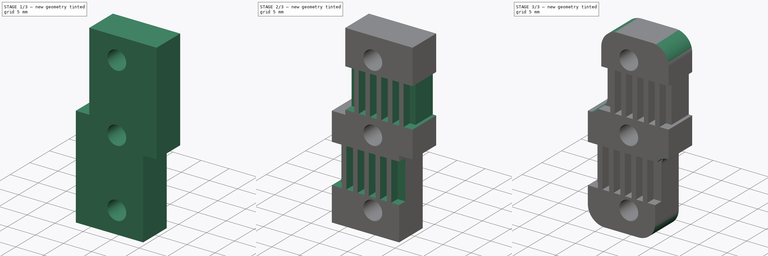
[diagram: build sequence overview — one tinted view per stage of 3, left to right]
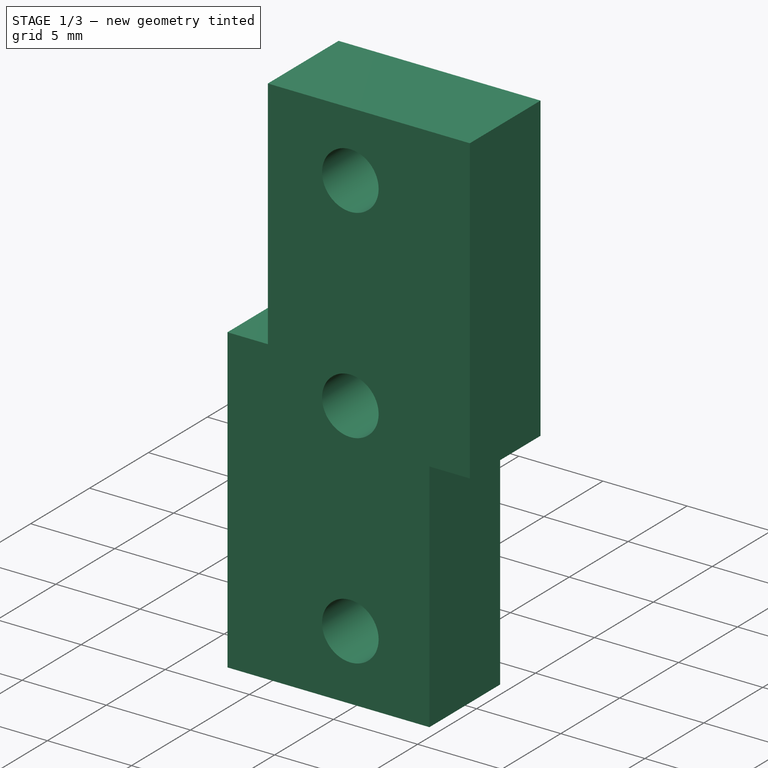
[diagram: stage 1 of 3 — iso view after this stage's code; geometry added in this stage tinted green]
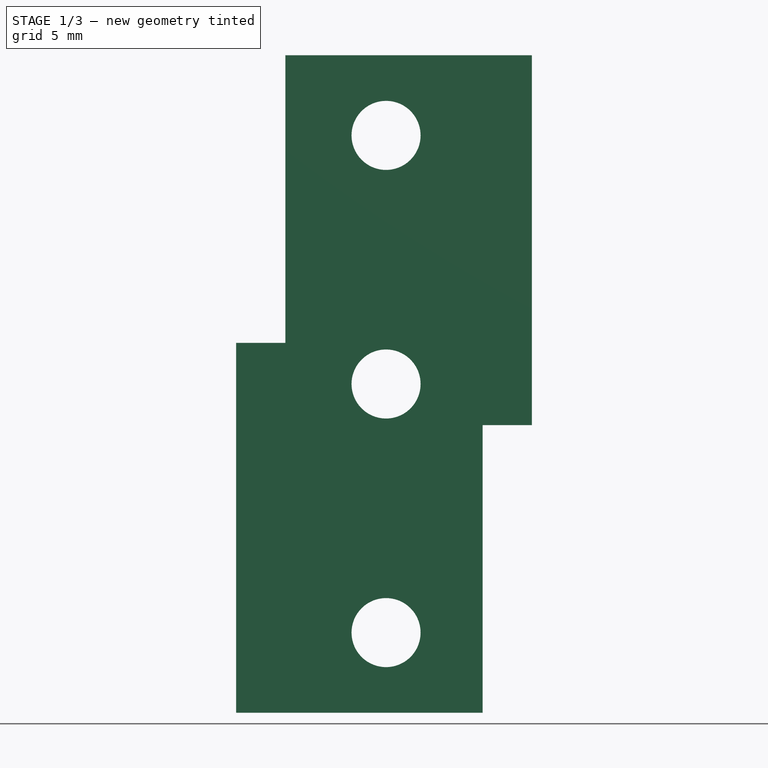
[diagram: stage 1 of 3 — front view after this stage's code; geometry added in this stage tinted green]
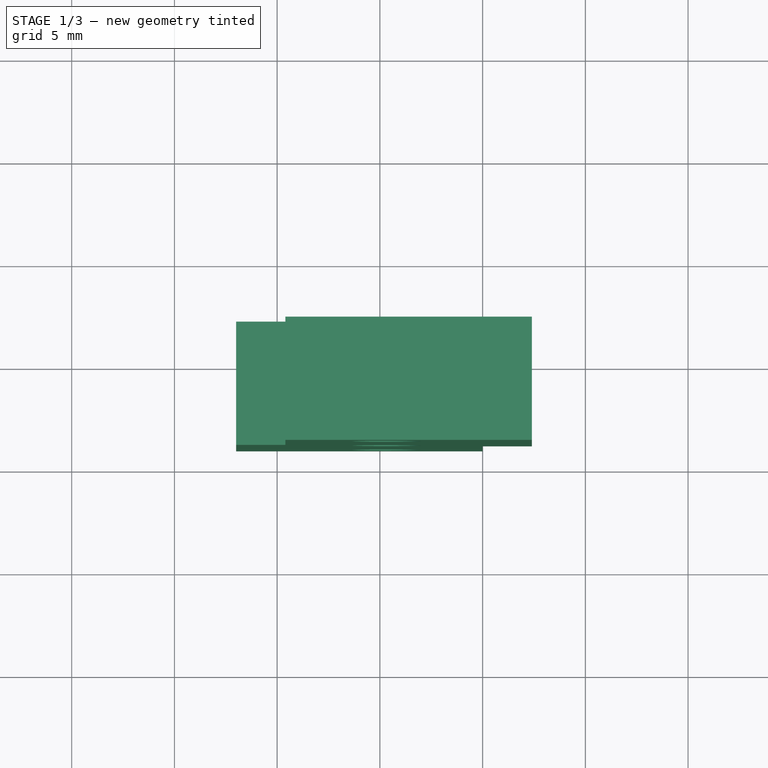
[diagram: stage 1 of 3 — top view after this stage's code; geometry added in this stage tinted green]
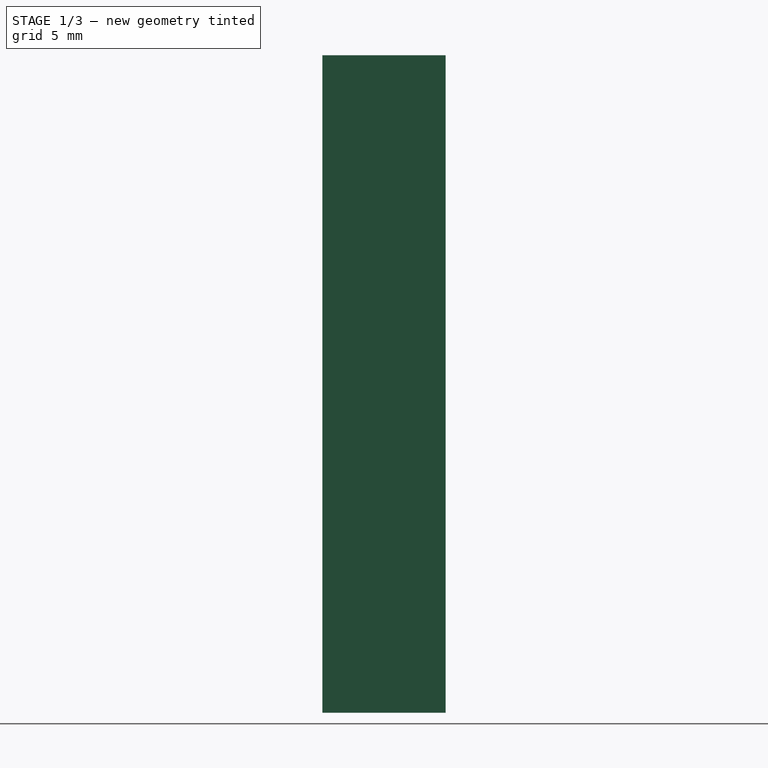
[diagram: stage 1 of 3 — right view after this stage's code; geometry added in this stage tinted green]
FCSTD DOCUMENT  (FreeCAD 0.16R6706 (Git))
Label: s-belt-mount
License: All rights reserved
LicenseURL: http://en.wikipedia.org/wiki/All_rights_reserved
objects: Sketcher::SketchObject×4, PartDesign::Pocket×3, PartDesign::Fillet×2, PartDesign::Pad×1
note: 14 computed .brp shape members not serialized (recipe doc carries the construction recipe); baked Part::Feature solids carry a one-line shape summary decoded from their .brp

FEATURE [Sketcher::SketchObject] Sketch017  label="frame"
  Placement = pos=(28,46,0) rot=(0,0.707107,0.707107;3.14159rad)
  sketch-geometry (8):
    g0: LineSegment StartX=-14.4 StartY=32 StartZ=0 EndX=-14.4 EndY=14 EndZ=0
    g1: LineSegment StartX=-14.4 StartY=14 StartZ=0 EndX=-12 EndY=14 EndZ=0
    g2: LineSegment StartX=-12 StartY=14 StartZ=0 EndX=-12 EndY=0 EndZ=0
    g3: LineSegment StartX=-12 StartY=0 StartZ=0 EndX=0 EndY=0 EndZ=0
    g4: LineSegment StartX=0 StartY=0 StartZ=0 EndX=0 EndY=18 EndZ=0
    g5: LineSegment StartX=0 StartY=18 StartZ=0 EndX=-2.4 EndY=18 EndZ=0
    g6: LineSegment StartX=-2.4 StartY=18 StartZ=0 EndX=-2.4 EndY=32 EndZ=0
    g7: LineSegment StartX=-2.4 StartY=32 StartZ=0 EndX=-14.4 EndY=32 EndZ=0
  constraints (24):
    c: Coincident(g0,g1)
    c: Coincident(g1,g2)
    c: Coincident(g2,g3)
    c: Coincident(g3,g4)
    c: Coincident(g4,g5)
    c: Coincident(g5,g6)
    c: Coincident(g6,g7)
    c: Coincident(g7,g0)
    c: DistanceX(g-2,g3) = 0
    c: DistanceY(g-1,g3) = 0
    c: Distance(g4) = 18
    c: Distance(g2) = 14
    c: Perpendicular(g3,g4)
    c: Perpendicular(g5,g4)
    c: Perpendicular(g1,g2)
    c: Perpendicular(g7,g6)
    c: Perpendicular(g7,g0)
    c: Parallel(g4,g6)
    c: Parallel(g0,g2)
    c: Distance(g5) = 2.4
    c: Equal(g5,g1)
    c: Distance(g3) = 12
    c: Distance(g0) = 18
    c: Parallel(g-1,g3)
FEATURE [PartDesign::Pad] Pad
  Length = 6
  Length2 = 100
  Placement = pos=(28,46,0) rot=(0,0.707107,0.707107;3.14159rad)
  Sketch = -> Sketch017
  Type = 0
FEATURE [Sketcher::SketchObject] Sketch018  label="mnt holes"
  Placement = pos=(28,52,0) rot=(0,0.707107,0.707107;3.14159rad)
  Support = -> Pad [Face10]
  sketch-geometry (3):
    g0: Circle CenterX=-7.3 CenterY=3.9 CenterZ=0 NormalX=0 NormalY=0 NormalZ=1 Radius=1.68
    g1: Circle CenterX=-7.3 CenterY=16 CenterZ=0 NormalX=0 NormalY=0 NormalZ=1 Radius=1.68
    g2: Circle CenterX=-7.3 CenterY=28.1 CenterZ=0 NormalX=0 NormalY=0 NormalZ=1 Radius=1.68
  constraints (9):
    c: Radius(g0) = 1.68
    c: DistanceY(g-1,g0) = 3.9
    c: DistanceX(g-2,g0) = -7.3
    c: Equal(g0,g1)
    c: Equal(g1,g2)
    c: Distance(g0,g1) = 12.1
    c: Distance(g1,g2) = 12.1
    c: DistanceX(g-2,g1) = -7.3
    c: DistanceX(g-2,g2) = -7.3
FEATURE [PartDesign::Pocket] Pocket
  Length = 6
  Placement = pos=(28,46,0) rot=(0,0.707107,0.707107;3.14159rad)
  Sketch = -> Sketch018
  Type = 0
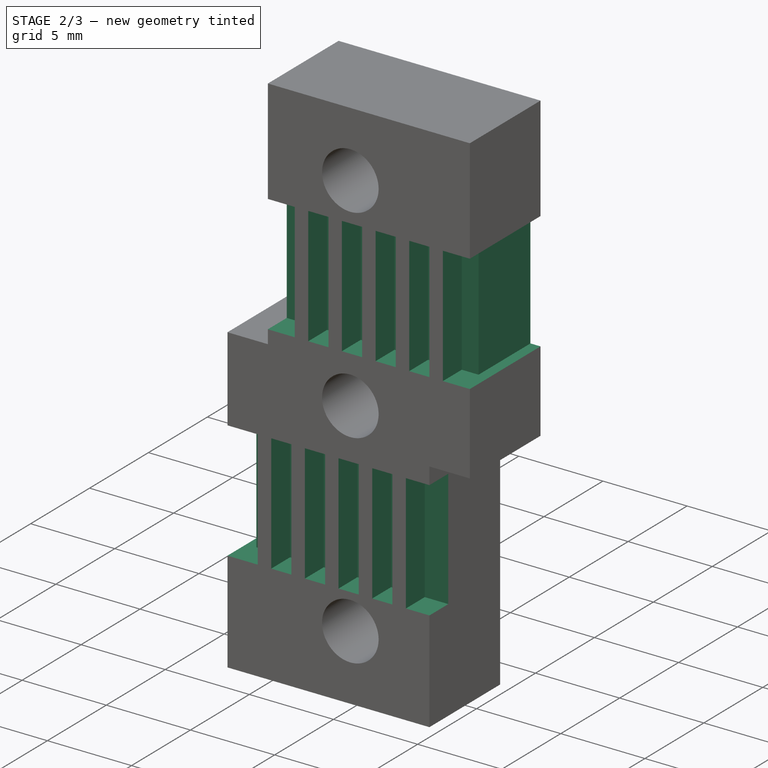
[diagram: stage 2 of 3 — iso view after this stage's code; geometry added in this stage tinted green]
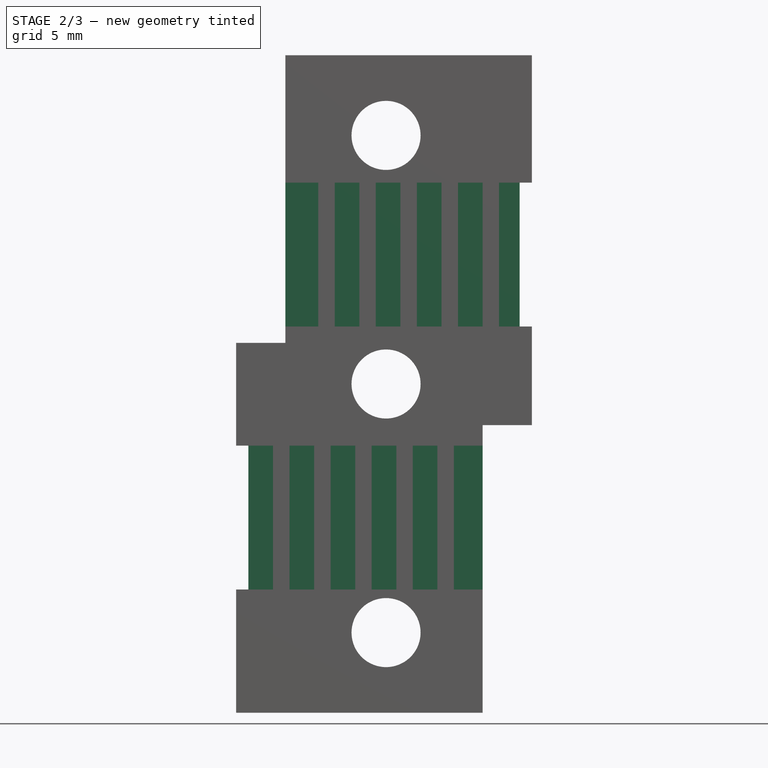
[diagram: stage 2 of 3 — front view after this stage's code; geometry added in this stage tinted green]
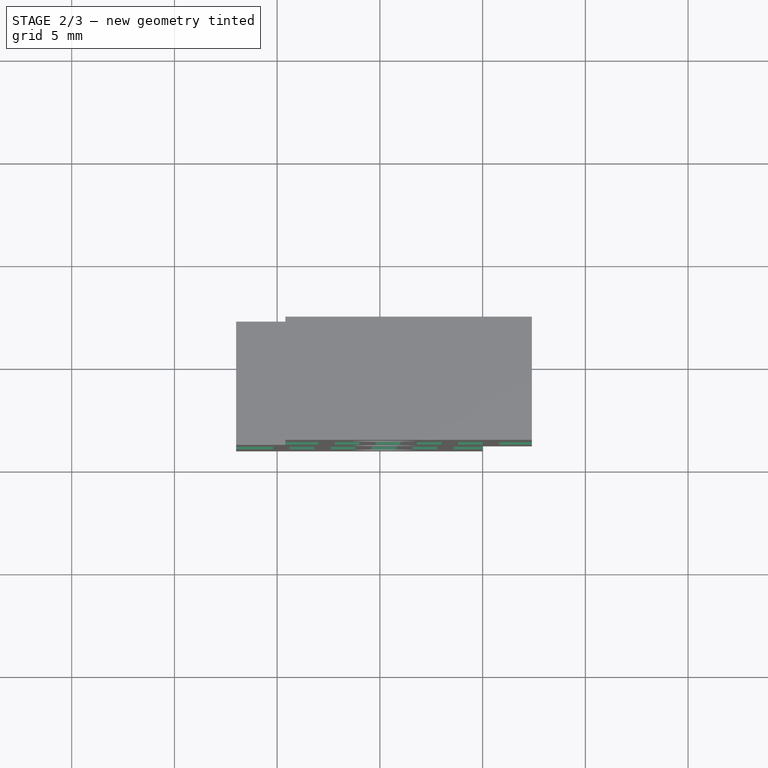
[diagram: stage 2 of 3 — top view after this stage's code; geometry added in this stage tinted green]
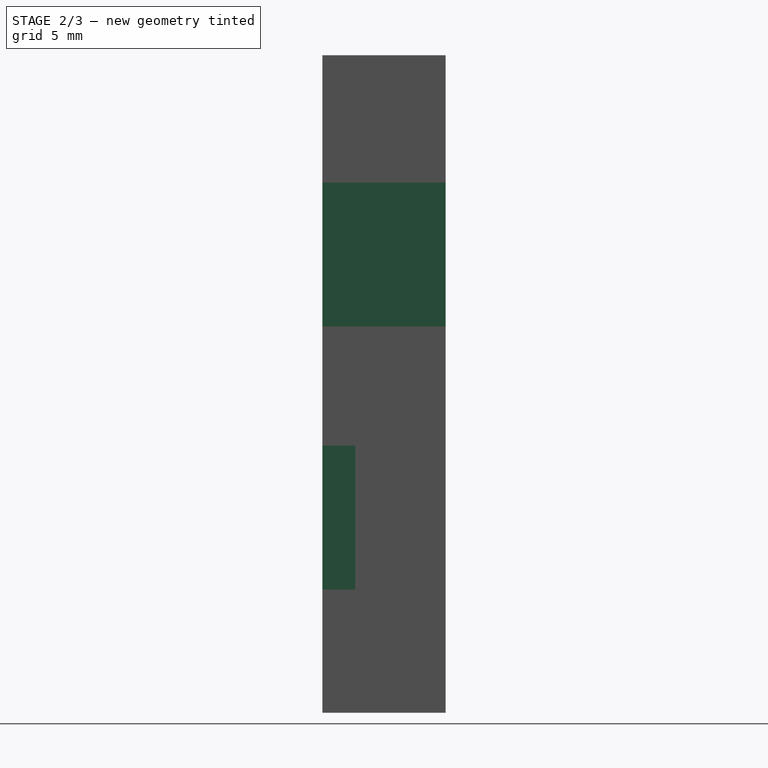
[diagram: stage 2 of 3 — right view after this stage's code; geometry added in this stage tinted green]
FEATURE [Sketcher::SketchObject] Sketch019  label=" belt groove"
  Placement = pos=(28,52,0) rot=(0,0.707107,0.707107;3.14159rad)
  Support = -> Pocket [Face5]
  sketch-geometry (8):
    g0: LineSegment StartX=0 StartY=6 StartZ=0 EndX=-0.6 EndY=6 EndZ=0
    g1: LineSegment StartX=-0.6 StartY=6 StartZ=0 EndX=-0.6 EndY=13 EndZ=0
    g2: LineSegment StartX=-0.6 StartY=13 StartZ=0 EndX=0 EndY=13 EndZ=0
    g3: LineSegment StartX=0 StartY=13 StartZ=0 EndX=0 EndY=6 EndZ=0
    g4: LineSegment StartX=-14.4 StartY=18.8 StartZ=0 EndX=-13.8 EndY=18.8 EndZ=0
    g5: LineSegment StartX=-13.8 StartY=18.8 StartZ=0 EndX=-13.8 EndY=25.8 EndZ=0
    g6: LineSegment StartX=-13.8 StartY=25.8 StartZ=0 EndX=-14.4 EndY=25.8 EndZ=0
    g7: LineSegment StartX=-14.4 StartY=25.8 StartZ=0 EndX=-14.4 EndY=18.8 EndZ=0
  constraints (24):
    c: Coincident(g0,g1)
    c: Coincident(g1,g2)
    c: Coincident(g2,g3)
    c: Coincident(g3,g0)
    c: Horizontal(g0)
    c: Horizontal(g2)
    c: Vertical(g1)
    c: Vertical(g3)
    c: Distance(g0) = 0.6
    c: DistanceX(g-2,g2) = 0
    c: DistanceY(g-1,g0) = 6
    c: Distance(g1) = 7
    c: Coincident(g4,g5)
    c: Coincident(g5,g6)
    c: Coincident(g6,g7)
    c: Coincident(g7,g4)
    c: Horizontal(g4)
    c: Horizontal(g6)
    c: Vertical(g5)
    c: Vertical(g7)
    c: Equal(g5,g1)
    c: DistanceY(g-1,g4) = 18.8
    c: Equal(g2,g4)
    c: DistanceX(g-2,g6) = -14.4
FEATURE [PartDesign::Pocket] Pocket001
  Length = 6
  Placement = pos=(28,46,0) rot=(0,0.707107,0.707107;3.14159rad)
  Sketch = -> Sketch019
  Type = 0
FEATURE [Sketcher::SketchObject] Sketch020  label="teeth"
  Placement = pos=(28,46,0) rot=(0,-0.707107,0.707107;3.14159rad)
  Support = -> Pocket001 [Face2]
  sketch-geometry (48):
    g0: LineSegment StartX=-6.6 StartY=-6 StartZ=0 EndX=-7.8 EndY=-6 EndZ=0
    g1: LineSegment StartX=-7.8 StartY=-6 StartZ=0 EndX=-7.8 EndY=-13 EndZ=0
    g2: LineSegment StartX=-7.8 StartY=-13 StartZ=0 EndX=-6.6 EndY=-13 EndZ=0
    g3: LineSegment StartX=-6.6 StartY=-13 StartZ=0 EndX=-6.6 EndY=-6 EndZ=0
    g4: LineSegment StartX=-4.6 StartY=-6 StartZ=0 EndX=-5.8 EndY=-6 EndZ=0
    g5: LineSegment StartX=-5.8 StartY=-6 StartZ=0 EndX=-5.8 EndY=-13 EndZ=0
    g6: LineSegment StartX=-5.8 StartY=-13 StartZ=0 EndX=-4.6 EndY=-13 EndZ=0
    g7: LineSegment StartX=-4.6 StartY=-13 StartZ=0 EndX=-4.6 EndY=-6 EndZ=0
    g8: LineSegment StartX=-2.6 StartY=-6 StartZ=0 EndX=-3.8 EndY=-6 EndZ=0
    g9: LineSegment StartX=-3.8 StartY=-6 StartZ=0 EndX=-3.8 EndY=-13 EndZ=0
    g10: LineSegment StartX=-3.8 StartY=-13 StartZ=0 EndX=-2.6 EndY=-13 EndZ=0
    g11: LineSegment StartX=-2.6 StartY=-13 StartZ=0 EndX=-2.6 EndY=-6 EndZ=0
    g12: LineSegment StartX=-0.6 StartY=-6 StartZ=0 EndX=-1.8 EndY=-6 EndZ=0
    g13: LineSegment StartX=-1.8 StartY=-6 StartZ=0 EndX=-1.8 EndY=-13 EndZ=0
    g14: LineSegment StartX=-1.8 StartY=-13 StartZ=0 EndX=-0.6 EndY=-13 EndZ=0
    g15: LineSegment StartX=-0.6 StartY=-13 StartZ=0 EndX=-0.6 EndY=-6 EndZ=0
    g16: LineSegment StartX=-12.1155 StartY=-6 StartZ=0 EndX=-10.6 EndY=-6 EndZ=0
    g17: LineSegment StartX=-10.6 StartY=-6 StartZ=0 EndX=-10.6 EndY=-13 EndZ=0
    g18: LineSegment StartX=-10.6 StartY=-13 StartZ=0 EndX=-12.1155 EndY=-13 EndZ=0
    g19: LineSegment StartX=-12.1155 StartY=-13 StartZ=0 EndX=-12.1155 EndY=-6 EndZ=0
    g20: LineSegment StartX=-9.8 StartY=-6 StartZ=0 EndX=-8.6 EndY=-6 EndZ=0
    g21: LineSegment StartX=-8.6 StartY=-6 StartZ=0 EndX=-8.6 EndY=-13 EndZ=0
    g22: LineSegment StartX=-8.6 StartY=-13 StartZ=0 EndX=-9.8 EndY=-13 EndZ=0
    g23: LineSegment StartX=-9.8 StartY=-13 StartZ=0 EndX=-9.8 EndY=-6 EndZ=0
    g24: LineSegment StartX=-14 StartY=-18.8 StartZ=0 EndX=-12.8 EndY=-18.8 EndZ=0
    g25: LineSegment StartX=-12.8 StartY=-18.8 StartZ=0 EndX=-12.8 EndY=-25.8 EndZ=0
    g26: LineSegment StartX=-12.8 StartY=-25.8 StartZ=0 EndX=-14 EndY=-25.8 EndZ=0
    g27: LineSegment StartX=-14 StartY=-25.8 StartZ=0 EndX=-14 EndY=-18.8 EndZ=0
    g28: LineSegment StartX=-12 StartY=-18.8 StartZ=0 EndX=-10.8 EndY=-18.8 EndZ=0
    g29: LineSegment StartX=-10.8 StartY=-18.8 StartZ=0 EndX=-10.8 EndY=-25.8 EndZ=0
    g30: LineSegment StartX=-10.8 StartY=-25.8 StartZ=0 EndX=-12 EndY=-25.8 EndZ=0
    g31: LineSegment StartX=-12 StartY=-25.8 StartZ=0 EndX=-12 EndY=-18.8 EndZ=0
    g32: LineSegment StartX=-10 StartY=-18.8 StartZ=0 EndX=-8.8 EndY=-18.8 EndZ=0
    g33: LineSegment StartX=-8.8 StartY=-18.8 StartZ=0 EndX=-8.8 EndY=-25.8 EndZ=0
    g34: LineSegment StartX=-8.8 StartY=-25.8 StartZ=0 EndX=-10 EndY=-25.8 EndZ=0
    g35: LineSegment StartX=-10 StartY=-25.8 StartZ=0 EndX=-10 EndY=-18.8 EndZ=0
    g36: LineSegment StartX=-8 StartY=-18.8 StartZ=0 EndX=-6.8 EndY=-18.8 EndZ=0
    g37: LineSegment StartX=-6.8 StartY=-18.8 StartZ=0 EndX=-6.8 EndY=-25.8 EndZ=0
    g38: LineSegment StartX=-6.8 StartY=-25.8 StartZ=0 EndX=-8 EndY=-25.8 EndZ=0
    g39: LineSegment StartX=-8 StartY=-25.8 StartZ=0 EndX=-8 EndY=-18.8 EndZ=0
    g40: LineSegment StartX=-6 StartY=-18.8 StartZ=0 EndX=-4.8 EndY=-18.8 EndZ=0
    g41: LineSegment StartX=-4.8 StartY=-18.8 StartZ=0 EndX=-4.8 EndY=-25.8 EndZ=0
    g42: LineSegment StartX=-4.8 StartY=-25.8 StartZ=0 EndX=-6 EndY=-25.8 EndZ=0
    g43: LineSegment StartX=-6 StartY=-25.8 StartZ=0 EndX=-6 EndY=-18.8 EndZ=0
    g44: LineSegment StartX=-4 StartY=-18.8 StartZ=0 EndX=-2.4 EndY=-18.8 EndZ=0
    g45: LineSegment StartX=-2.4 StartY=-18.8 StartZ=0 EndX=-2.4 EndY=-25.8 EndZ=0
    g46: LineSegment StartX=-2.4 StartY=-25.8 StartZ=0 EndX=-4 EndY=-25.8 EndZ=0
    g47: LineSegment StartX=-4 StartY=-25.8 StartZ=0 EndX=-4 EndY=-18.8 EndZ=0
  constraints (138):
    c: Coincident(g0,g1)
    c: Coincident(g1,g2)
    c: Coincident(g2,g3)
    c: Coincident(g3,g0)
    c: Horizontal(g0)
    c: Horizontal(g2)
    c: Vertical(g1)
    c: Vertical(g3)
    c: Coincident(g4,g5)
    c: Coincident(g5,g6)
    c: Coincident(g6,g7)
    c: Coincident(g7,g4)
    c: Horizontal(g4)
    c: Horizontal(g6)
    c: Vertical(g5)
    c: Vertical(g7)
    c: Coincident(g8,g9)
    c: Coincident(g9,g10)
    c: Coincident(g10,g11)
    c: Coincident(g11,g8)
    c: Horizontal(g8)
    c: Horizontal(g10)
    c: Vertical(g9)
    c: Vertical(g11)
    c: Coincident(g12,g13)
    c: Coincident(g13,g14)
    c: Coincident(g14,g15)
    c: Coincident(g15,g12)
    c: Horizontal(g12)
    c: Horizontal(g14)
    c: Vertical(g13)
    c: Vertical(g15)
    c: Coincident(g16,g17)
    c: Coincident(g17,g18)
    c: Coincident(g18,g19)
    c: Coincident(g19,g16)
    c: Horizontal(g16)
    c: Horizontal(g18)
    c: Vertical(g17)
    c: Vertical(g19)
    c: Coincident(g20,g21)
    c: Coincident(g21,g22)
    c: Coincident(g22,g23)
    c: Coincident(g23,g20)
    c: Horizontal(g20)
    c: Horizontal(g22)
    c: Vertical(g21)
    c: Vertical(g23)
    c: DistanceX(g-2,g14) = -0.6
    c: Coincident(g24,g25)
    c: Coincident(g25,g26)
    c: Coincident(g26,g27)
    c: Coincident(g27,g24)
    c: Horizontal(g24)
    c: Horizontal(g26)
    c: Vertical(g25)
    c: Vertical(g27)
    c: Coincident(g28,g29)
    c: Coincident(g29,g30)
    c: Coincident(g30,g31)
    c: Coincident(g31,g28)
    c: Horizontal(g28)
    c: Horizontal(g30)
    c: Vertical(g29)
    c: Vertical(g31)
    c: Coincident(g32,g33)
    c: Coincident(g33,g34)
    c: Coincident(g34,g35)
    c: Coincident(g35,g32)
    c: Horizontal(g32)
    c: Vertical(g33)
    c: Vertical(g35)
    c: Coincident(g36,g37)
    c: Coincident(g37,g38)
    c: Coincident(g38,g39)
    c: Coincident(g39,g36)
    c: Horizontal(g36)
    c: Vertical(g37)
    c: Vertical(g39)
    c: Coincident(g40,g41)
    c: Coincident(g41,g42)
    c: Coincident(g42,g43)
    c: Coincident(g43,g40)
    c: Horizontal(g40)
    c: Vertical(g41)
    c: Vertical(g43)
    c: Coincident(g44,g45)
    c: Coincident(g45,g46)
    c: Coincident(g46,g47)
    c: Coincident(g47,g44)
    c: Horizontal(g44)
    c: Horizontal(g46)
    c: Vertical(g45)
    c: Vertical(g47)
    c: Distance(g45) = 7
    c: Distance(g24) = 1.2
    c: Distance(g24,g28) = 0.8
    c: Distance(g28,g32) = 0.8
    c: Distance(g32,g36) = 0.8
    c: Distance(g36,g40) = 0.8
    c: Distance(g40,g44) = 0.8
    c: Equal(g41,g37)
    c: Equal(g37,g33)
    c: Equal(g33,g29)
    c: Equal(g29,g25)
    c: Equal(g25,g15)
    c: Equal(g15,g11)
    c: Equal(g11,g7)
    c: Equal(g7,g3)
    c: Equal(g3,g21)
    c: Equal(g21,g17)
    c: DistanceY(g-1,g12) = -6
    c: Distance(g12) = 1.2
    c: DistanceY(g-1,g8) = -6
    c: DistanceY(g-1,g4) = -6
    c: DistanceY(g-1,g0) = -6
    c: DistanceY(g-1,g20) = -6
    c: DistanceY(g-1,g16) = -6
    c: Distance(g13,g10) = 0.8
    c: Distance(g9,g6) = 0.8
    c: Distance(g5,g2) = 0.8
    c: Distance(g1,g21) = 0.8
    c: Distance(g22,g17) = 0.8
    c: DistanceY(g-1,g24) = -18.8
    c: DistanceY(g-1,g28) = -18.8
    c: DistanceY(g-1,g32) = -18.8
    c: DistanceY(g-1,g36) = -18.8
    c: DistanceY(g-1,g40) = -18.8
    c: DistanceY(g-1,g44) = -18.8
    c: Parallel(g30,g34)
    c: Parallel(g34,g38)
    c: Parallel(g38,g42)
    c: Equal(g26,g30)
    c: Equal(g30,g34)
    c: Equal(g34,g38)
    c: Equal(g38,g42)
    c: Distance(g46) = 1.6
    c: DistanceX(g-2,g45) = -2.4
FEATURE [PartDesign::Pocket] Pocket002
  Length = 1.6
  Placement = pos=(28,46,0) rot=(0,0.707107,0.707107;3.14159rad)
  Sketch = -> Sketch020
  Type = 0
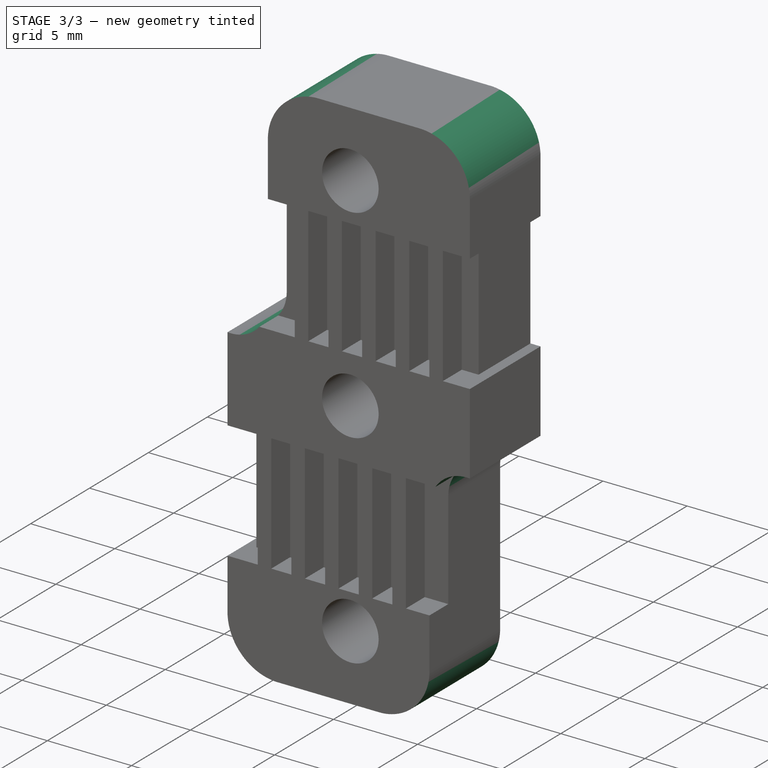
[diagram: stage 3 of 3 — iso view after this stage's code; geometry added in this stage tinted green]
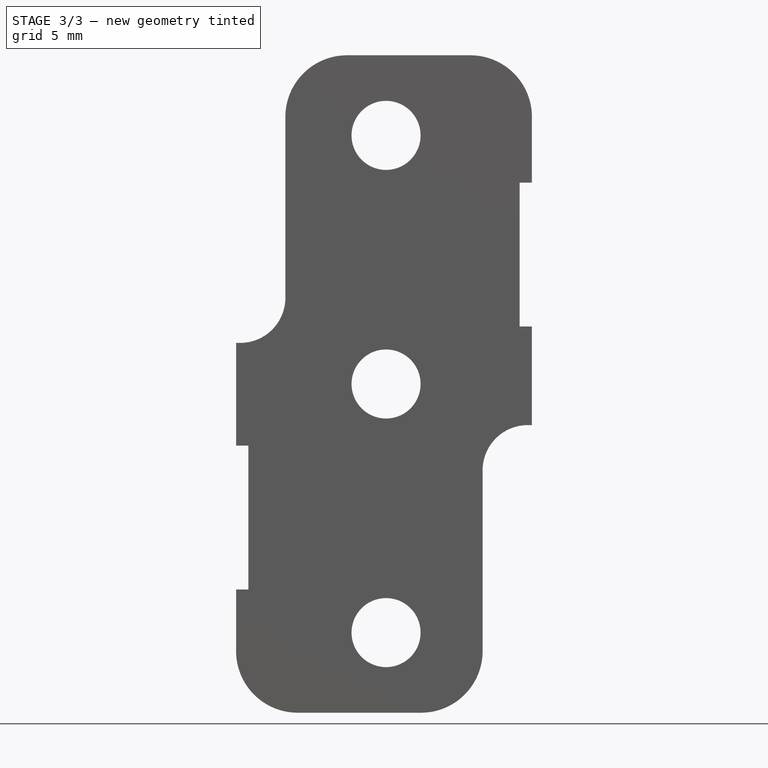
[diagram: stage 3 of 3 — front view after this stage's code; geometry added in this stage tinted green]
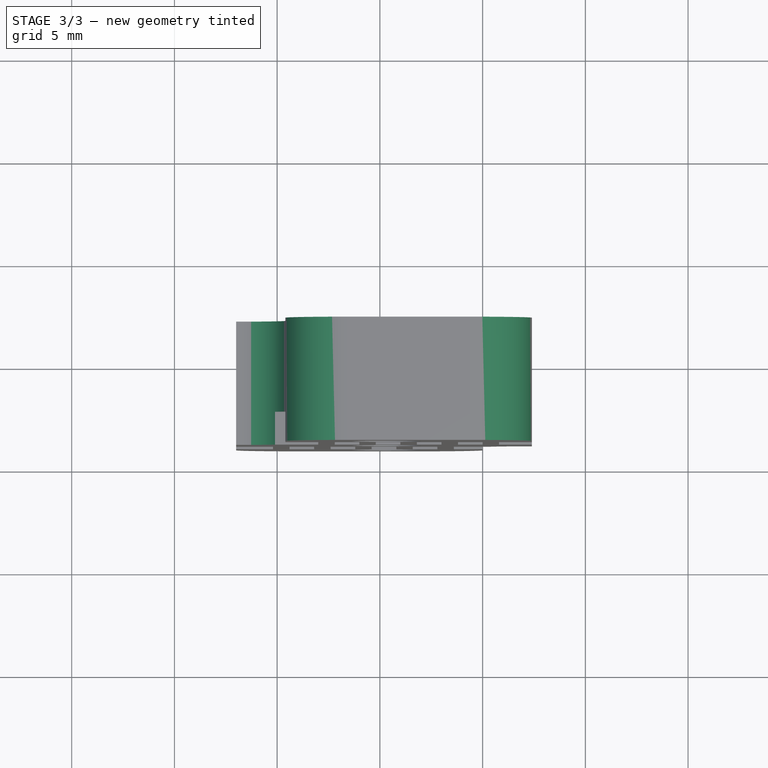
[diagram: stage 3 of 3 — top view after this stage's code; geometry added in this stage tinted green]
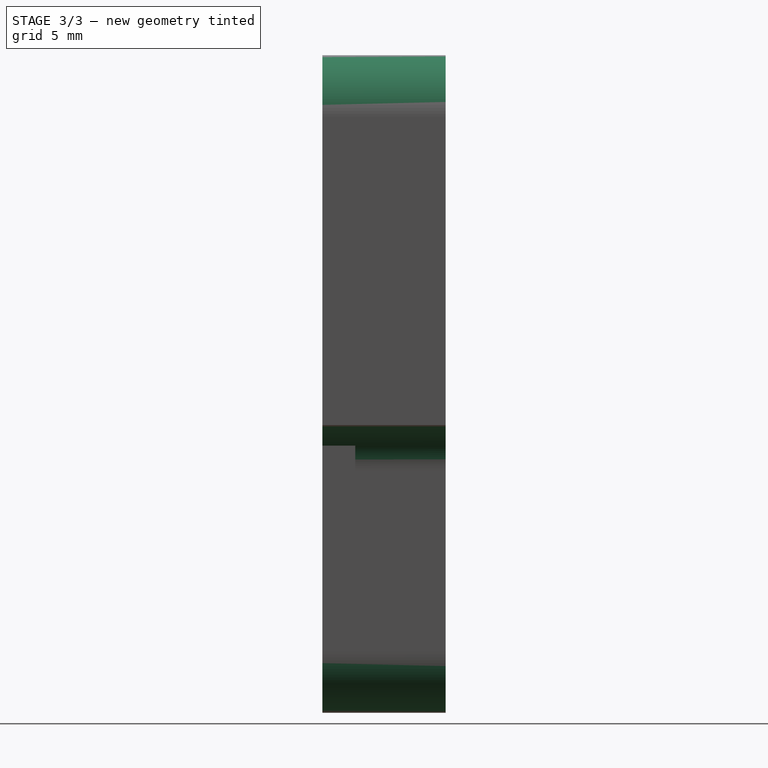
[diagram: stage 3 of 3 — right view after this stage's code; geometry added in this stage tinted green]
FEATURE [PartDesign::Fillet] Fillet
  Base = -> Pocket002 [Edge103,Edge126]
  Placement = pos=(28,46,0) rot=(0,0.707107,0.707107;3.14159rad)
  Radius = 2.2
FEATURE [PartDesign::Fillet] Fillet001
  Base = -> Fillet [Edge113,Edge110,Edge93,Edge90]
  Placement = pos=(28,46,0) rot=(0,0.707107,0.707107;3.14159rad)
  Radius = 3
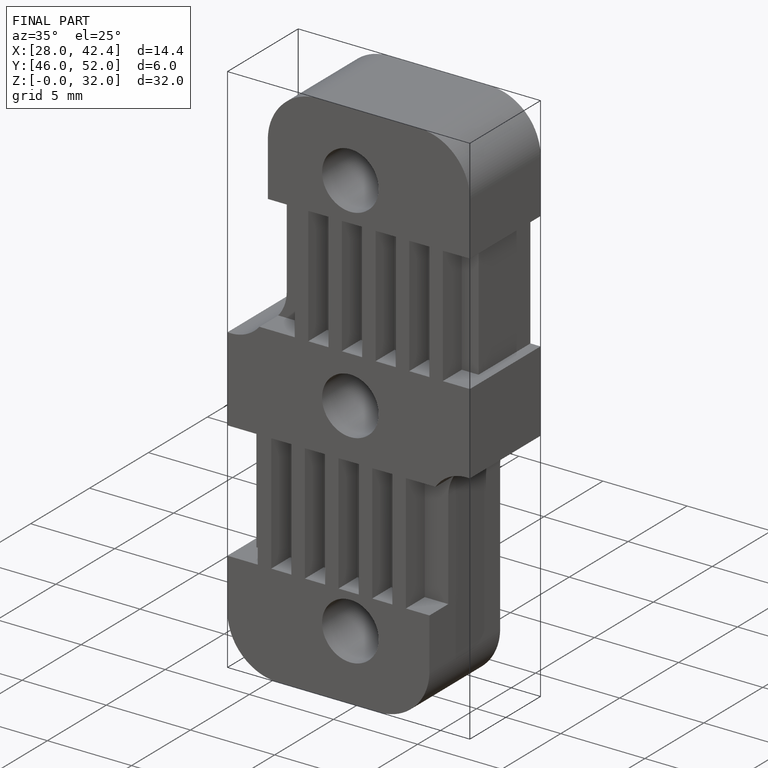
[diagram: finished part — iso view with bounding-box wireframe]
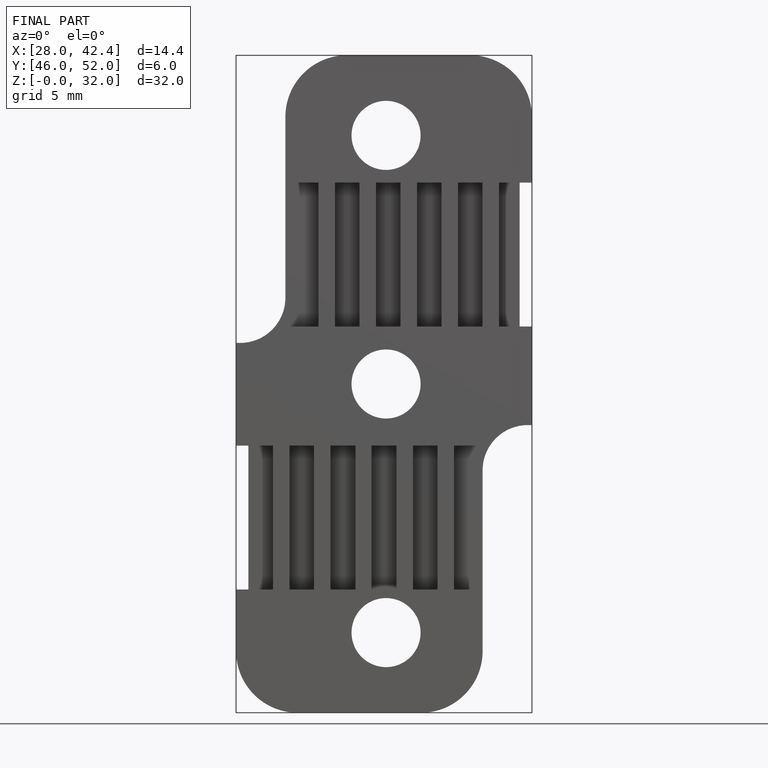
[diagram: finished part — front view with bounding-box wireframe]
